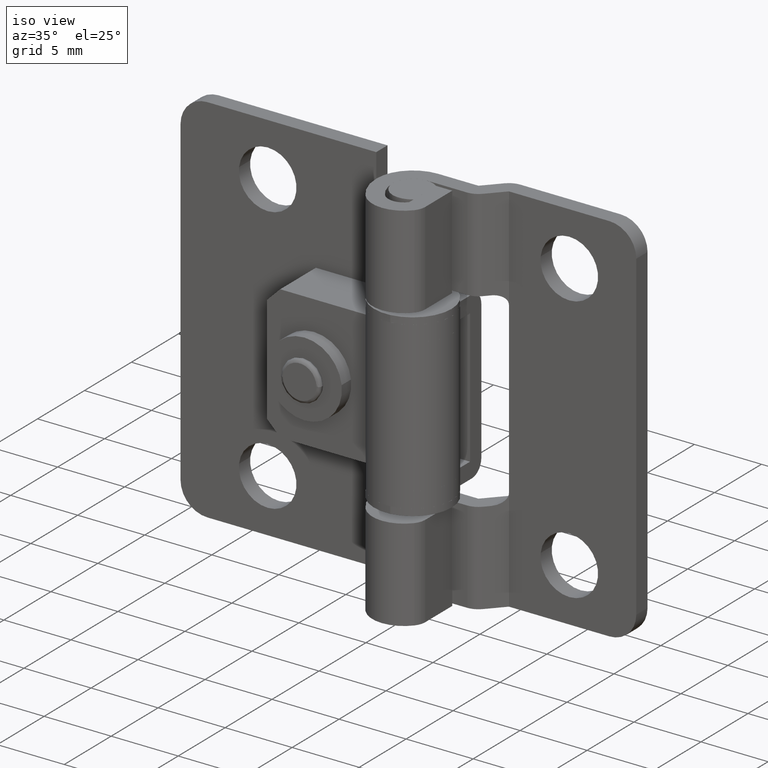
[diagram: clean part render]
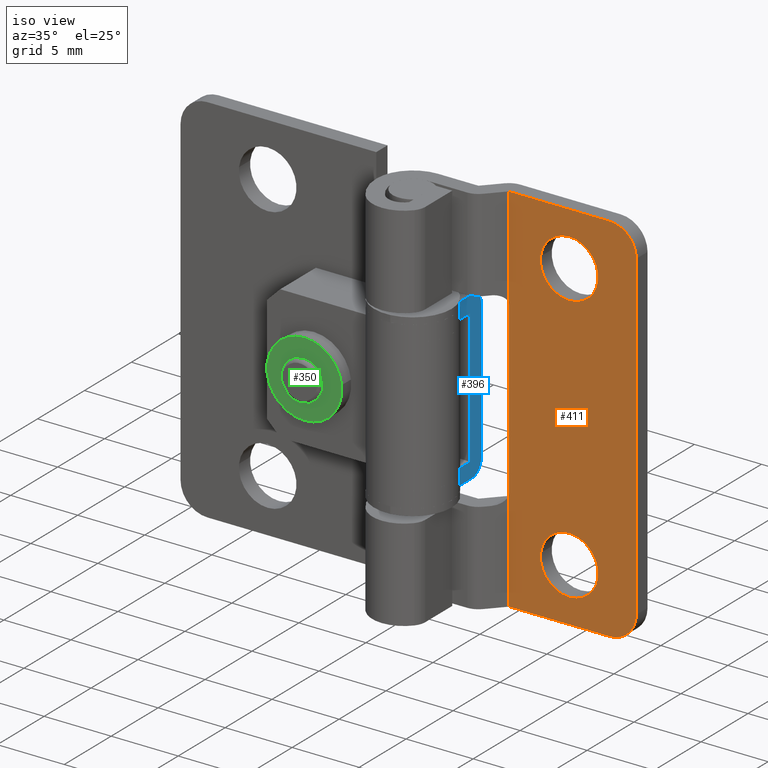
[diagram: same view with three faces highlighted in distinct colors, each labeled with its STEP entity id]
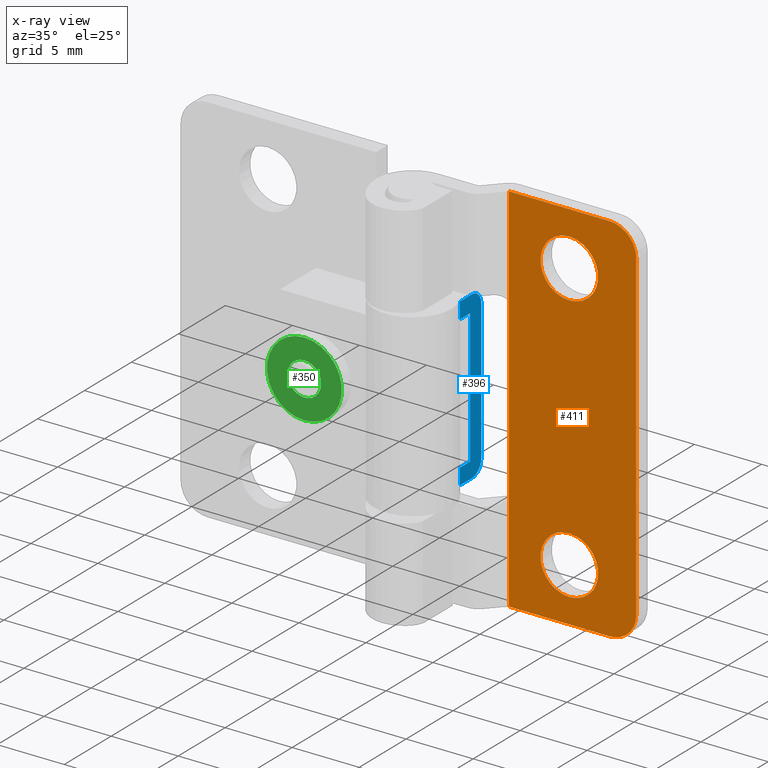
[diagram: x-ray of the same camera — body ghosted, the three highlighted faces saturated]
A machine part, iso view with three faces highlighted in distinct colors.
The next image is the same camera in x-ray (body ghosted, the three faces saturated) — at least one of them is partly hidden behind the body in this view.
Their STEP definitions:

[orange] entity #411 — the highlighted planar face has unit normal (0, -1, 0).
#411=ADVANCED_FACE('',(#1176,#1177,#1178),#1175,.T.);
#1175=PLANE('',#2316);
#1176=FACE_OUTER_BOUND('',#2317,.T.);
#1177=FACE_BOUND('',#2318,.T.);
#1178=FACE_BOUND('',#2319,.T.);
#2313=CARTESIAN_POINT('',(4.05000000000E+00,3.10000000000E+00,3.08000000000E+01));
#2314=DIRECTION('',(0.00000000000E+00,-1.00000000000E+00,0.00000000000E+00));
#2315=DIRECTION('',(0.00000000000E+00,0.00000000000E+00,-1.00000000000E+00));
#2316=AXIS2_PLACEMENT_3D('',#2313,#2314,#2315);
#2317=EDGE_LOOP('',(#3047,#3048,#3049,#3050,#3051,#3052,#3053,#3054));
#2318=EDGE_LOOP('',(#3055,#3056,#3057));
#2319=EDGE_LOOP('',(#3058,#3059,#3060));
#3047=ORIENTED_EDGE('',*,*,#3632,.T.);
#3048=ORIENTED_EDGE('',*,*,#3633,.T.);
#3049=ORIENTED_EDGE('',*,*,#3634,.T.);
#3050=ORIENTED_EDGE('',*,*,#3635,.T.);
#3051=ORIENTED_EDGE('',*,*,#3636,.F.);
#3052=ORIENTED_EDGE('',*,*,#3637,.F.);
#3053=ORIENTED_EDGE('',*,*,#3638,.F.);
#3054=ORIENTED_EDGE('',*,*,#3639,.F.);
#3055=ORIENTED_EDGE('',*,*,#3640,.F.);
#3056=ORIENTED_EDGE('',*,*,#3641,.F.);
#3057=ORIENTED_EDGE('',*,*,#3642,.F.);
#3058=ORIENTED_EDGE('',*,*,#3643,.F.);
#3059=ORIENTED_EDGE('',*,*,#3644,.F.);
#3060=ORIENTED_EDGE('',*,*,#3645,.F.);
#3632=EDGE_CURVE('',#5123,#5124,#5125,.T.);
#3633=EDGE_CURVE('',#5124,#5131,#5132,.T.);
#3634=EDGE_CURVE('',#5131,#5138,#5139,.T.);
#3635=EDGE_CURVE('',#5138,#5145,#5146,.T.);
#3636=EDGE_CURVE('',#5152,#5145,#5153,.T.);
#3637=EDGE_CURVE('',#5159,#5152,#5160,.T.);
#3638=EDGE_CURVE('',#5166,#5159,#5167,.T.);
#3639=EDGE_CURVE('',#5123,#5166,#5173,.T.);
#3640=EDGE_CURVE('',#5179,#5180,#5181,.T.);
#3641=EDGE_CURVE('',#5187,#5179,#5188,.T.);
#3642=EDGE_CURVE('',#5180,#5187,#5194,.T.);
#3643=EDGE_CURVE('',#5200,#5201,#5202,.T.);
#3644=EDGE_CURVE('',#5208,#5200,#5209,.T.);
#3645=EDGE_CURVE('',#5201,#5208,#5215,.T.);
#5123=VERTEX_POINT('',#7224);
#5124=VERTEX_POINT('',#7225);
#5125=LINE('',#7226,#7227);
#5131=VERTEX_POINT('',#7229);
#5132=CIRCLE('',#7233,2.00000000000E+00);
#5138=VERTEX_POINT('',#7234);
#5139=LINE('',#7235,#7236);
#5145=VERTEX_POINT('',#7238);
#5146=CIRCLE('',#7242,2.00000000000E+00);
#5152=VERTEX_POINT('',#7243);
#5153=LINE('',#7244,#7245);
#5159=VERTEX_POINT('',#7247);
#5160=LINE('',#7248,#7249);
#5166=VERTEX_POINT('',#7251);
#5167=LINE('',#7252,#7253);
#5173=LINE('',#7255,#7256);
#5179=VERTEX_POINT('',#7258);
#5180=VERTEX_POINT('',#7259);
#5181=CIRCLE('',#7263,2.15000000000E+00);
#5187=VERTEX_POINT('',#7264);
#5188=CIRCLE('',#7268,2.15000000000E+00);
#5194=CIRCLE('',#7272,2.15000000000E+00);
#5200=VERTEX_POINT('',#7273);
#5201=VERTEX_POINT('',#7274);
#5202=CIRCLE('',#7278,2.15000000000E+00);
#5208=VERTEX_POINT('',#7279);
#5209=CIRCLE('',#7283,2.15000000000E+00);
#5215=CIRCLE('',#7287,2.15000000000E+00);
#7224=CARTESIAN_POINT('',(5.00000000000E+00,3.10000000000E+00,0.00000000000E+00));
#7225=CARTESIAN_POINT('',(1.25000000000E+01,3.10000000000E+00,0.00000000000E+00));
#7226=CARTESIAN_POINT('',(5.00000000000E+00,3.10000000000E+00,0.00000000000E+00));
#7227=VECTOR('',#7228,7.50000000000E+00);
#7228=DIRECTION('',(1.00000000000E+00,0.00000000000E+00,0.00000000000E+00));
#7229=CARTESIAN_POINT('',(1.45000000000E+01,3.10000000000E+00,2.00000000000E+00));
#7230=CARTESIAN_POINT('',(1.25000000000E+01,3.10000000000E+00,2.00000000000E+00));
#7231=DIRECTION('',(-3.92523114671E-16,-1.00000000000E+00,3.48630559684E-31));
#7232=DIRECTION('',(8.88178419700E-16,-0.00000000000E+00,1.00000000000E+00));
#7233=AXIS2_PLACEMENT_3D('',#7230,#7231,#7232);
#7234=CARTESIAN_POINT('',(1.45000000000E+01,3.10000000000E+00,2.60000000000E+01));
#7235=CARTESIAN_POINT('',(1.45000000000E+01,3.10000000000E+00,2.00000000000E+00));
#7236=VECTOR('',#7237,2.40000000000E+01);
#7237=DIRECTION('',(0.00000000000E+00,0.00000000000E+00,1.00000000000E+00));
#7238=CARTESIAN_POINT('',(1.25000000000E+01,3.10000000000E+00,2.80000000000E+01));
#7239=CARTESIAN_POINT('',(1.25000000000E+01,3.10000000000E+00,2.60000000000E+01));
#7240=DIRECTION('',(-6.97261119368E-31,-1.00000000000E+00,-3.92523114671E-16));
#7241=DIRECTION('',(-1.00000000000E+00,-0.00000000000E+00,1.77635683940E-15));
#7242=AXIS2_PLACEMENT_3D('',#7239,#7240,#7241);
#7243=CARTESIAN_POINT('',(5.00000000000E+00,3.10000000000E+00,2.80000000000E+01));
#7244=CARTESIAN_POINT('',(5.00000000000E+00,3.10000000000E+00,2.80000000000E+01));
#7245=VECTOR('',#7246,7.50000000000E+00);
#7246=DIRECTION('',(1.00000000000E+00,0.00000000000E+00,0.00000000000E+00));
#7247=CARTESIAN_POINT('',(5.00000000000E+00,3.10000000000E+00,2.03500000000E+01));
#7248=CARTESIAN_POINT('',(5.00000000000E+00,3.10000000000E+00,2.03500000000E+01));
#7249=VECTOR('',#7250,7.65000000000E+00);
#7250=DIRECTION('',(0.00000000000E+00,0.00000000000E+00,1.00000000000E+00));
#7251=CARTESIAN_POINT('',(5.00000000000E+00,3.10000000000E+00,7.65000000000E+00));
#7252=CARTESIAN_POINT('',(5.00000000000E+00,3.10000000000E+00,7.65000000000E+00));
#7253=VECTOR('',#7254,1.27000000000E+01);
#7254=DIRECTION('',(0.00000000000E+00,0.00000000000E+00,1.00000000000E+00));
#7255=CARTESIAN_POINT('',(5.00000000000E+00,3.10000000000E+00,0.00000000000E+00));
#7256=VECTOR('',#7257,7.65000000000E+00);
#7257=DIRECTION('',(0.00000000000E+00,0.00000000000E+00,1.00000000000E+00));
#7258=CARTESIAN_POINT('',(1.16349705745E+01,3.10000000000E+00,3.74622717623E+00));
#7259=CARTESIAN_POINT('',(9.50000000000E+00,3.10000000000E+00,6.15000000000E+00));
#7260=CARTESIAN_POINT('',(9.50000000000E+00,3.10000000000E+00,4.00000000000E+00));
#7261=DIRECTION('',(3.81030245150E-16,-1.00000000000E+00,4.95551994375E-15));
#7262=DIRECTION('',(1.96509475359E-14,4.95551994375E-15,1.00000000000E+00));
#7263=AXIS2_PLACEMENT_3D('',#7260,#7261,#7262);
#7264=CARTESIAN_POINT('',(7.36507341155E+00,3.10000000000E+00,4.25414260158E+00));
#7265=CARTESIAN_POINT('',(9.50000000000E+00,3.10000000000E+00,4.00000000000E+00));
#7266=DIRECTION('',(3.81030245150E-16,-1.00000000000E+00,4.95551994375E-15));
#7267=DIRECTION('',(1.96509475359E-14,4.95551994375E-15,1.00000000000E+00));
#7268=AXIS2_PLACEMENT_3D('',#7265,#7266,#7267);
#7269=CARTESIAN_POINT('',(9.50000000000E+00,3.10000000000E+00,4.00000000000E+00));
#7270=DIRECTION('',(3.81030245150E-16,-1.00000000000E+00,4.95551994375E-15));
#7271=DIRECTION('',(1.96509475359E-14,4.95551994375E-15,1.00000000000E+00));
#7272=AXIS2_PLACEMENT_3D('',#7269,#7270,#7271);
#7273=CARTESIAN_POINT('',(1.16349705745E+01,3.10000000000E+00,2.37462271762E+01));
#7274=CARTESIAN_POINT('',(9.50000000000E+00,3.10000000000E+00,2.61500000000E+01));
#7275=CARTESIAN_POINT('',(9.50000000000E+00,3.10000000000E+00,2.40000000000E+01));
#7276=DIRECTION('',(-1.31705028936E-15,-1.00000000000E+00,-9.33028184860E-15));
#7277=DIRECTION('',(2.03725925019E-14,-9.33028184860E-15,1.00000000000E+00));
#7278=AXIS2_PLACEMENT_3D('',#7275,#7276,#7277);
#7279=CARTESIAN_POINT('',(7.36507341155E+00,3.10000000000E+00,2.42541426016E+01));
#7280=CARTESIAN_POINT('',(9.50000000000E+00,3.10000000000E+00,2.40000000000E+01));
#7281=DIRECTION('',(-1.31705028936E-15,-1.00000000000E+00,-9.33028184860E-15));
#7282=DIRECTION('',(2.03725925019E-14,-9.33028184860E-15,1.00000000000E+00));
#7283=AXIS2_PLACEMENT_3D('',#7280,#7281,#7282);
#7284=CARTESIAN_POINT('',(9.50000000000E+00,3.10000000000E+00,2.40000000000E+01));
#7285=DIRECTION('',(-1.31705028936E-15,-1.00000000000E+00,-9.33028184860E-15));
#7286=DIRECTION('',(2.03725925019E-14,-9.33028184860E-15,1.00000000000E+00));
#7287=AXIS2_PLACEMENT_3D('',#7284,#7285,#7286);

[blue] entity #396 — the highlighted planar face has unit normal (1, 0, 0).
#396=ADVANCED_FACE('',(#1024),#1023,.T.);
#1023=PLANE('',#2239);
#1024=FACE_OUTER_BOUND('',#2240,.T.);
#2236=CARTESIAN_POINT('',(2.10000000000E+00,1.77000000000E+00,2.14400000000E+01));
#2237=DIRECTION('',(1.00000000000E+00,-0.00000000000E+00,0.00000000000E+00));
#2238=DIRECTION('',(0.00000000000E+00,0.00000000000E+00,-1.00000000000E+00));
#2239=AXIS2_PLACEMENT_3D('',#2236,#2237,#2238);
#2240=EDGE_LOOP('',(#2963,#2964,#2965,#2966,#2967,#2968,#2969,#2970,#2971,#2972));
#2963=ORIENTED_EDGE('',*,*,#3551,.F.);
#2964=ORIENTED_EDGE('',*,*,#3561,.T.);
#2965=ORIENTED_EDGE('',*,*,#3590,.T.);
#2966=ORIENTED_EDGE('',*,*,#3556,.T.);
#2967=ORIENTED_EDGE('',*,*,#3542,.F.);
#2968=ORIENTED_EDGE('',*,*,#3608,.F.);
#2969=ORIENTED_EDGE('',*,*,#3609,.T.);
#2970=ORIENTED_EDGE('',*,*,#3600,.T.);
#2971=ORIENTED_EDGE('',*,*,#3610,.T.);
#2972=ORIENTED_EDGE('',*,*,#3611,.F.);
#3542=EDGE_CURVE('',#4521,#4522,#4523,.T.);
#3551=EDGE_CURVE('',#4578,#4585,#4586,.T.);
#3556=EDGE_CURVE('',#4619,#4522,#4620,.T.);
#3561=EDGE_CURVE('',#4578,#4646,#4653,.T.);
#3590=EDGE_CURVE('',#4646,#4619,#4847,.T.);
#3600=EDGE_CURVE('',#4914,#4907,#4915,.T.);
#3608=EDGE_CURVE('',#4969,#4521,#4970,.T.);
#3609=EDGE_CURVE('',#4969,#4914,#4976,.T.);
#3610=EDGE_CURVE('',#4907,#4982,#4983,.T.);
#3611=EDGE_CURVE('',#4585,#4982,#4989,.T.);
#4521=VERTEX_POINT('',#6864);
#4522=VERTEX_POINT('',#6865);
#4523=LINE('',#6866,#6867);
#4578=VERTEX_POINT('',#6901);
#4585=VERTEX_POINT('',#6905);
#4586=LINE('',#6906,#6907);
#4619=VERTEX_POINT('',#6928);
#4620=CIRCLE('',#6932,1.00000000000E+00);
#4646=VERTEX_POINT('',#6946);
#4653=CIRCLE('',#6953,1.00000000000E+00);
#4847=LINE('',#7062,#7063);
#4907=VERTEX_POINT('',#7101);
#4914=VERTEX_POINT('',#7105);
#4915=LINE('',#7106,#7107);
#4969=VERTEX_POINT('',#7142);
#4970=LINE('',#7143,#7144);
#4976=LINE('',#7146,#7147);
#4982=VERTEX_POINT('',#7149);
#4983=LINE('',#7150,#7151);
#4989=LINE('',#7153,#7154);
#6864=CARTESIAN_POINT('',(2.10000000000E+00,2.00000000000E+00,2.02000000000E+01));
#6865=CARTESIAN_POINT('',(2.10000000000E+00,3.30000000000E+00,2.02000000000E+01));
#6866=CARTESIAN_POINT('',(2.10000000000E+00,2.00000000000E+00,2.02000000000E+01));
#6867=VECTOR('',#6868,1.30000000000E+00);
#6868=DIRECTION('',(0.00000000000E+00,1.00000000000E+00,0.00000000000E+00));
#6901=CARTESIAN_POINT('',(2.10000000000E+00,3.30000000000E+00,7.80000000000E+00));
#6905=CARTESIAN_POINT('',(2.10000000000E+00,2.00000000000E+00,7.80000000000E+00));
#6906=CARTESIAN_POINT('',(2.10000000000E+00,3.30000000000E+00,7.80000000000E+00));
#6907=VECTOR('',#6908,1.30000000000E+00);
#6908=DIRECTION('',(0.00000000000E+00,-1.00000000000E+00,0.00000000000E+00));
#6928=CARTESIAN_POINT('',(2.10000000000E+00,4.30000000000E+00,1.92000000000E+01));
#6929=CARTESIAN_POINT('',(2.10000000000E+00,3.30000000000E+00,1.92000000000E+01));
#6930=DIRECTION('',(1.00000000000E+00,-8.88178419700E-16,5.57808895495E-31));
#6931=DIRECTION('',(-8.88178419700E-16,-1.00000000000E+00,3.55271367880E-15));
#6932=AXIS2_PLACEMENT_3D('',#6929,#6930,#6931);
#6946=CARTESIAN_POINT('',(2.10000000000E+00,4.30000000000E+00,8.80000000000E+00));
#6950=CARTESIAN_POINT('',(2.10000000000E+00,3.30000000000E+00,8.80000000000E+00));
#6951=DIRECTION('',(1.00000000000E+00,3.50324616081E-46,8.88178419700E-16));
#6952=DIRECTION('',(-8.88178419700E-16,-1.77635683940E-15,1.00000000000E+00));
#6953=AXIS2_PLACEMENT_3D('',#6950,#6951,#6952);
#7062=CARTESIAN_POINT('',(2.10000000000E+00,4.30000000000E+00,8.80000000000E+00));
#7063=VECTOR('',#7064,1.04000000000E+01);
#7064=DIRECTION('',(0.00000000000E+00,0.00000000000E+00,1.00000000000E+00));
#7101=CARTESIAN_POINT('',(2.10000000000E+00,3.10000000000E+00,9.00000000000E+00));
#7105=CARTESIAN_POINT('',(2.10000000000E+00,3.10000000000E+00,1.90000000000E+01));
#7106=CARTESIAN_POINT('',(2.10000000000E+00,3.10000000000E+00,1.90000000000E+01));
#7107=VECTOR('',#7108,1.00000000000E+01);
#7108=DIRECTION('',(0.00000000000E+00,0.00000000000E+00,-1.00000000000E+00));
#7142=CARTESIAN_POINT('',(2.10000000000E+00,2.00000000000E+00,1.90000000000E+01));
#7143=CARTESIAN_POINT('',(2.10000000000E+00,2.00000000000E+00,1.90000000000E+01));
#7144=VECTOR('',#7145,1.20000000000E+00);
#7145=DIRECTION('',(0.00000000000E+00,0.00000000000E+00,1.00000000000E+00));
#7146=CARTESIAN_POINT('',(2.10000000000E+00,2.00000000000E+00,1.90000000000E+01));
#7147=VECTOR('',#7148,1.10000000000E+00);
#7148=DIRECTION('',(0.00000000000E+00,1.00000000000E+00,0.00000000000E+00));
#7149=CARTESIAN_POINT('',(2.10000000000E+00,2.00000000000E+00,9.00000000000E+00));
#7150=CARTESIAN_POINT('',(2.10000000000E+00,3.10000000000E+00,9.00000000000E+00));
#7151=VECTOR('',#7152,1.10000000000E+00);
#7152=DIRECTION('',(0.00000000000E+00,-1.00000000000E+00,0.00000000000E+00));
#7153=CARTESIAN_POINT('',(2.10000000000E+00,2.00000000000E+00,7.80000000000E+00));
#7154=VECTOR('',#7155,1.20000000000E+00);
#7155=DIRECTION('',(0.00000000000E+00,0.00000000000E+00,1.00000000000E+00));

[green] entity #350 — the highlighted planar face has unit normal (0, -1, 0).
#350=ADVANCED_FACE('',(#553,#554),#552,.T.);
#552=PLANE('',#1904);
#553=FACE_OUTER_BOUND('',#1905,.T.);
#554=FACE_BOUND('',#1906,.T.);
#1901=CARTESIAN_POINT('',(-1.27196907134E+01,-1.70000000000E+00,1.76400000000E+01));
#1902=DIRECTION('',(0.00000000000E+00,-1.00000000000E+00,0.00000000000E+00));
#1903=DIRECTION('',(0.00000000000E+00,0.00000000000E+00,-1.00000000000E+00));
#1904=AXIS2_PLACEMENT_3D('',#1901,#1902,#1903);
#1905=EDGE_LOOP('',(#2699,#2700,#2701));
#1906=EDGE_LOOP('',(#2702,#2703,#2704));
#2699=ORIENTED_EDGE('',*,*,#3461,.F.);
#2700=ORIENTED_EDGE('',*,*,#3462,.F.);
#2701=ORIENTED_EDGE('',*,*,#3463,.F.);
#2702=ORIENTED_EDGE('',*,*,#3464,.T.);
#2703=ORIENTED_EDGE('',*,*,#3465,.T.);
#2704=ORIENTED_EDGE('',*,*,#3466,.T.);
#3461=EDGE_CURVE('',#3978,#3979,#3980,.T.);
#3462=EDGE_CURVE('',#3986,#3978,#3987,.T.);
#3463=EDGE_CURVE('',#3979,#3986,#3993,.T.);
#3464=EDGE_CURVE('',#3999,#4000,#4001,.T.);
#3465=EDGE_CURVE('',#4000,#4007,#4008,.T.);
#3466=EDGE_CURVE('',#4007,#3999,#4014,.T.);
#3978=VERTEX_POINT('',#6529);
#3979=VERTEX_POINT('',#6530);
#3980=CIRCLE('',#6534,2.80000000000E+00);
#3986=VERTEX_POINT('',#6535);
#3987=CIRCLE('',#6539,2.80000000000E+00);
#3993=CIRCLE('',#6543,2.80000000000E+00);
#3999=VERTEX_POINT('',#6544);
#4000=VERTEX_POINT('',#6545);
#4001=CIRCLE('',#6549,1.25000000002E+00);
#4007=VERTEX_POINT('',#6550);
#4008=CIRCLE('',#6554,1.25000000002E+00);
#4014=CIRCLE('',#6558,1.25000000002E+00);
#6529=CARTESIAN_POINT('',(-9.68042679468E+00,-1.70000000000E+00,1.36695051597E+01));
#6530=CARTESIAN_POINT('',(-6.90000000000E+00,-1.70000000000E+00,1.68000000000E+01));
#6531=CARTESIAN_POINT('',(-6.90000000000E+00,-1.70000000000E+00,1.40000000000E+01));
#6532=DIRECTION('',(8.86753218552E-17,1.00000000000E+00,-7.41638916608E-17));
#6533=DIRECTION('',(-3.34565708471E-13,7.41638916608E-17,1.00000000000E+00));
#6534=AXIS2_PLACEMENT_3D('',#6531,#6532,#6533);
#6535=CARTESIAN_POINT('',(-4.11963048950E+00,-1.70000000000E+00,1.43309764117E+01));
#6536=CARTESIAN_POINT('',(-6.90000000000E+00,-1.70000000000E+00,1.40000000000E+01));
#6537=DIRECTION('',(8.86753218552E-17,1.00000000000E+00,-7.41638916608E-17));
#6538=DIRECTION('',(-3.34565708471E-13,7.41638916608E-17,1.00000000000E+00));
#6539=AXIS2_PLACEMENT_3D('',#6536,#6537,#6538);
#6540=CARTESIAN_POINT('',(-6.90000000000E+00,-1.70000000000E+00,1.40000000000E+01));
#6541=DIRECTION('',(8.86753218552E-17,1.00000000000E+00,-7.41638916608E-17));
#6542=DIRECTION('',(-3.34565708471E-13,7.41638916608E-17,1.00000000000E+00));
#6543=AXIS2_PLACEMENT_3D('',#6540,#6541,#6542);
#6544=CARTESIAN_POINT('',(-6.90000000000E+00,-1.70000000000E+00,1.52500000000E+01));
#6545=CARTESIAN_POINT('',(-5.65876361646E+00,-1.70000000000E+00,1.41477573696E+01));
#6546=CARTESIAN_POINT('',(-6.89999999998E+00,-1.70000000000E+00,1.40000000000E+01));
#6547=DIRECTION('',(-1.06766287190E-15,1.00000000000E+00,-1.42108547148E-15));
#6548=DIRECTION('',(-1.45163880918E-11,1.42108547147E-15,1.00000000000E+00));
#6549=AXIS2_PLACEMENT_3D('',#6546,#6547,#6548);
#6550=CARTESIAN_POINT('',(-8.14126196191E+00,-1.70000000000E+00,1.38524576606E+01));
#6551=CARTESIAN_POINT('',(-6.89999999998E+00,-1.70000000000E+00,1.40000000000E+01));
#6552=DIRECTION('',(-1.06766287190E-15,1.00000000000E+00,-1.42108547148E-15));
#6553=DIRECTION('',(-1.45163880918E-11,1.42108547147E-15,1.00000000000E+00));
#6554=AXIS2_PLACEMENT_3D('',#6551,#6552,#6553);
#6555=CARTESIAN_POINT('',(-6.89999999998E+00,-1.70000000000E+00,1.40000000000E+01));
#6556=DIRECTION('',(-1.06766287190E-15,1.00000000000E+00,-1.42108547148E-15));
#6557=DIRECTION('',(-1.45163880918E-11,1.42108547147E-15,1.00000000000E+00));
#6558=AXIS2_PLACEMENT_3D('',#6555,#6556,#6557);